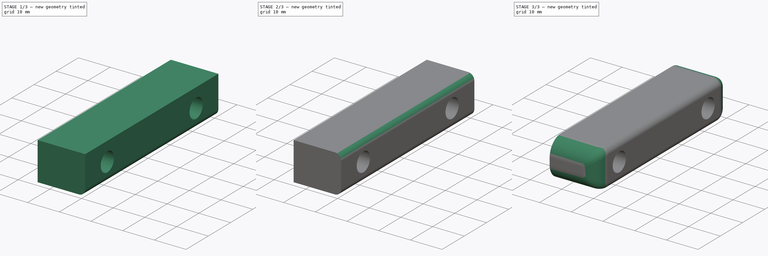
[diagram: build sequence overview — one tinted view per stage of 3, left to right]
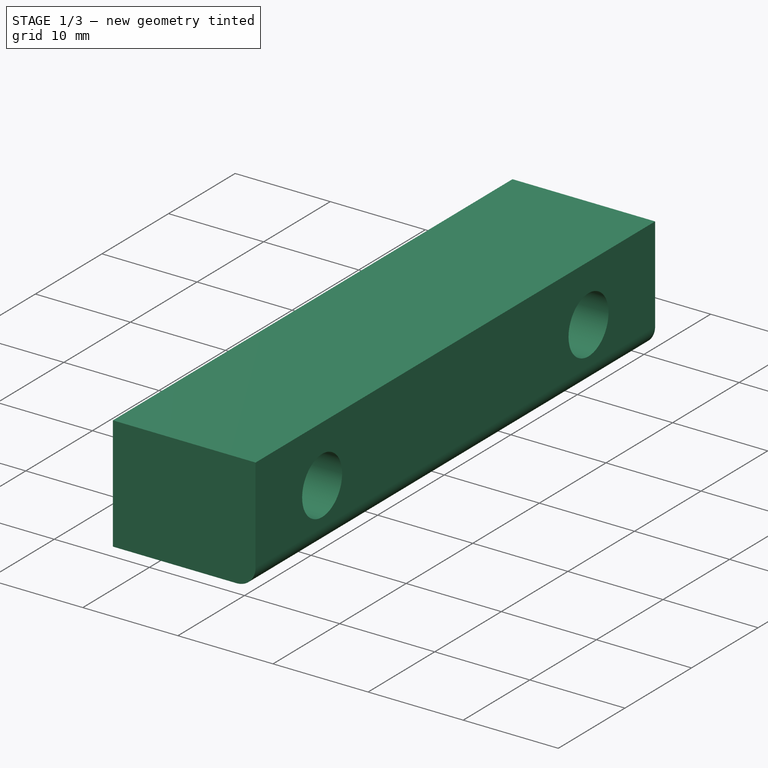
[diagram: stage 1 of 3 — iso view after this stage's code; geometry added in this stage tinted green]
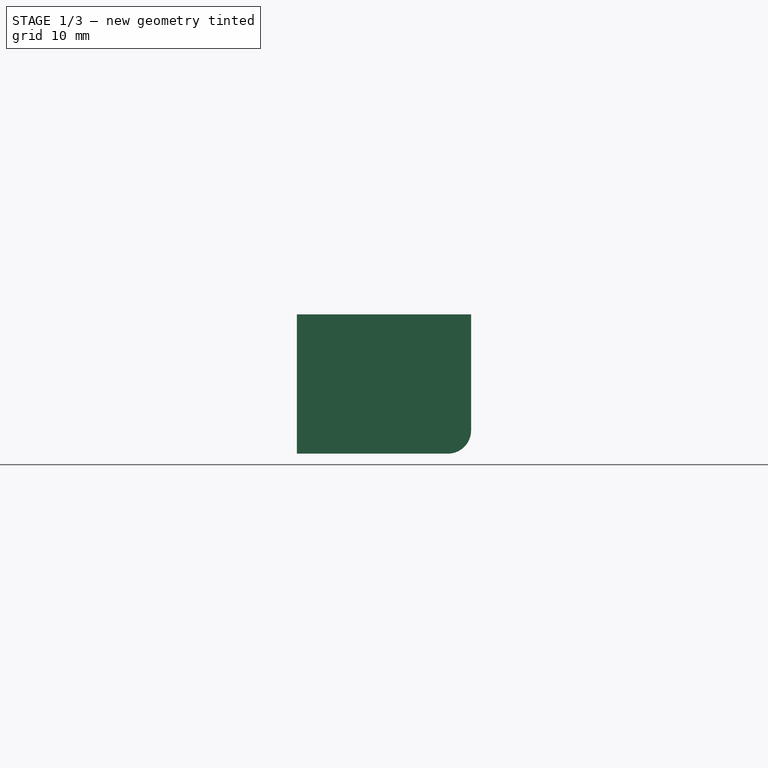
[diagram: stage 1 of 3 — front view after this stage's code; geometry added in this stage tinted green]
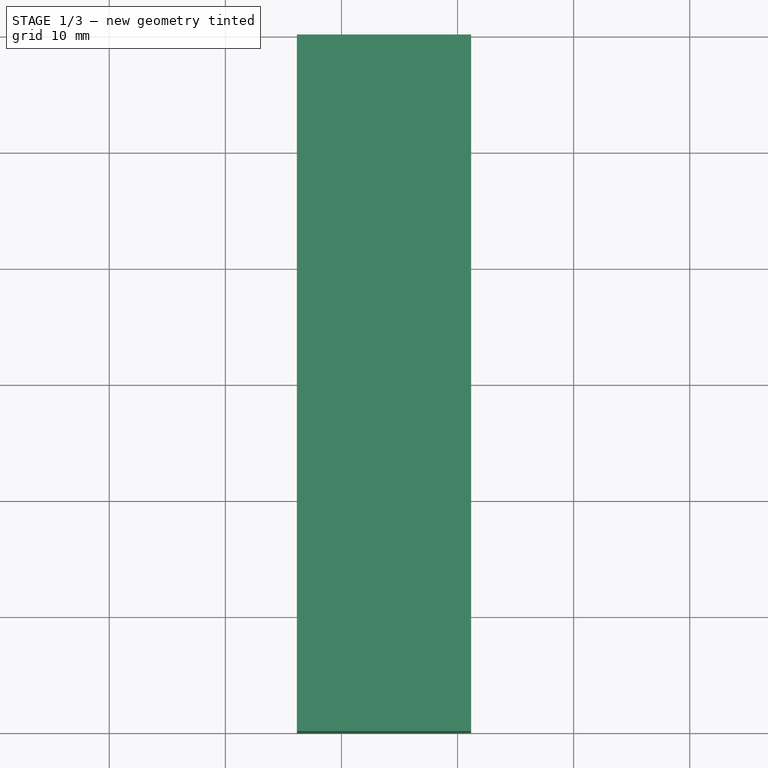
[diagram: stage 1 of 3 — top view after this stage's code; geometry added in this stage tinted green]
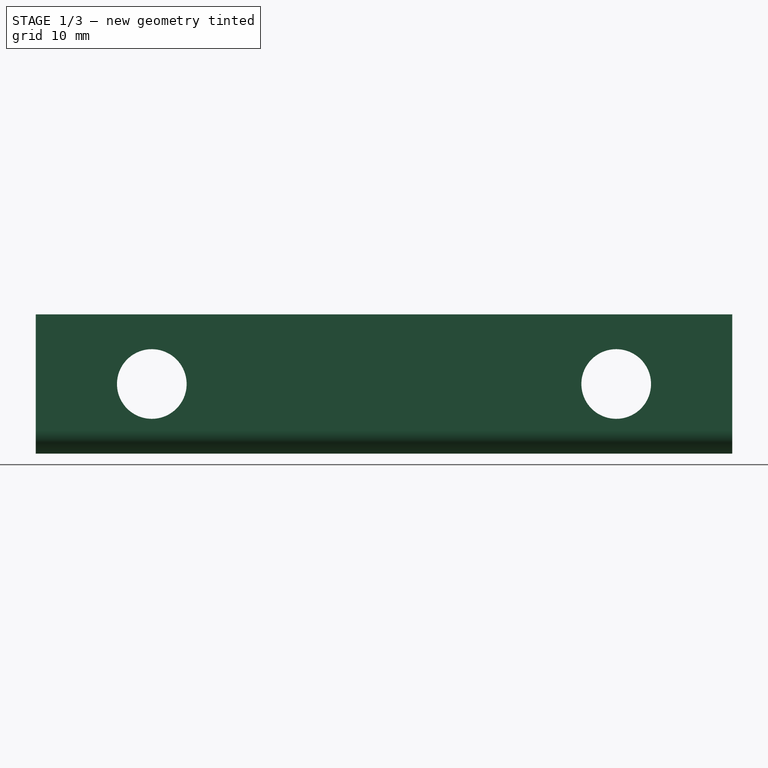
[diagram: stage 1 of 3 — right view after this stage's code; geometry added in this stage tinted green]
FCSTD DOCUMENT  (FreeCAD 0.16R6703 (Git))
Label: EndStops
License: All rights reserved
LicenseURL: http://en.wikipedia.org/wiki/All_rights_reserved
objects: PartDesign::Fillet×4, Sketcher::SketchObject×1, PartDesign::Pad×1
note: 7 computed .brp shape members not serialized (recipe doc carries the construction recipe); baked Part::Feature solids carry a one-line shape summary decoded from their .brp

FEATURE [Sketcher::SketchObject] Sketch001
  Placement = pos=(26.1649,0,0) rot=(0.707107,0,0.707107;3.14159rad)
  sketch-geometry (8):
    g0: LineSegment StartX=9.36781 StartY=60 StartZ=0 EndX=21.3678 EndY=60 EndZ=0
    g1: LineSegment StartX=21.3678 StartY=60 StartZ=0 EndX=21.3678 EndY=0 EndZ=0
    g2: LineSegment StartX=9.36781 StartY=0 StartZ=0 EndX=9.36781 EndY=60 EndZ=0
    g3: LineSegment [constr] StartX=15.3678 StartY=60 StartZ=0 EndX=15.3678 EndY=50 EndZ=0
    g4: LineSegment StartX=9.36781 StartY=0 StartZ=0 EndX=21.3678 EndY=0 EndZ=0
    g5: LineSegment [constr] StartX=15.3678 StartY=0 StartZ=0 EndX=15.3678 EndY=10 EndZ=0
    g6: Circle CenterX=15.3678 CenterY=10 CenterZ=0 NormalX=0 NormalY=0 NormalZ=1 Radius=3
    g7: Circle CenterX=15.3678 CenterY=50 CenterZ=0 NormalX=0 NormalY=0 NormalZ=1 Radius=3
  constraints (22):
    c: Coincident(g0,g1)
    c: Coincident(g2,g0)
    c: Horizontal(g0)
    c: Vertical(g1)
    c: Vertical(g2)
    c: DistanceX(g0,g0) = 12
    c: DistanceY(g1,g1) = 60
    c: PointOnObject(g3,g0)
    c: Vertical(g3)
    c: Coincident(g4,g2)
    c: Coincident(g4,g1)
    c: Horizontal(g4)
    c: PointOnObject(g5,g4)
    c: Vertical(g5)
    c: DistanceY(g3,g3) = 10
    c: Equal(g3,g5)
    c: Coincident(g6,g5)
    c: Coincident(g7,g3)
    c: Equal(g7,g6)
    c: Symmetric(g2,g1,g5)
    c: Symmetric(g0,g0,g3)
    c: Radius(g7) = 3
FEATURE [PartDesign::Pad] Pad
  Length = 15
  Length2 = 100
  Placement = pos=(26.1649,0,0) rot=(0.707107,0,0.707107;3.14159rad)
  Sketch = -> Sketch001
  Type = 0
FEATURE [PartDesign::Fillet] Fillet
  Base = -> Pad [Edge12]
  Placement = pos=(26.1649,0,0) rot=(0.707107,0,0.707107;3.14159rad)
  Radius = 2
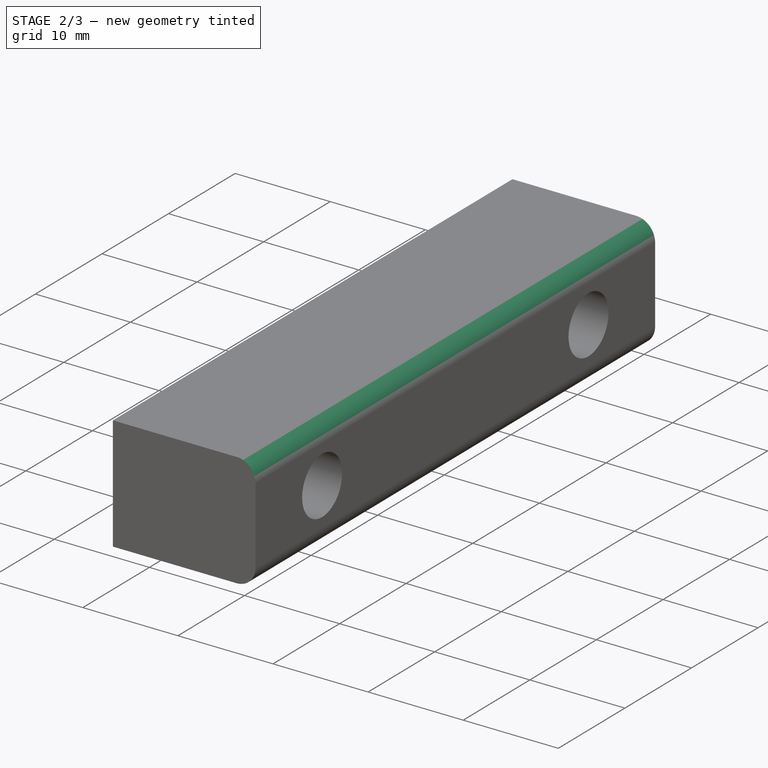
[diagram: stage 2 of 3 — iso view after this stage's code; geometry added in this stage tinted green]
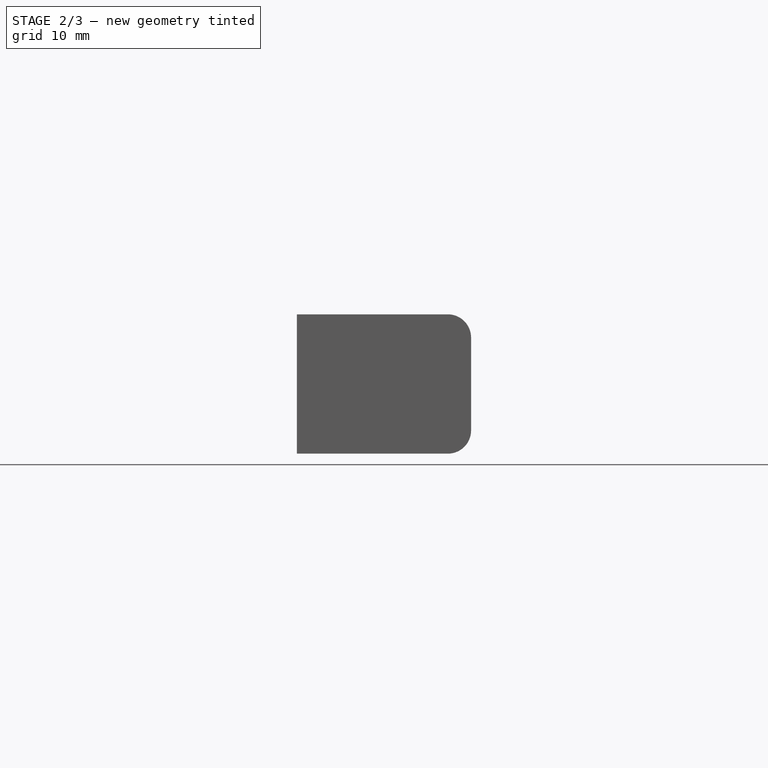
[diagram: stage 2 of 3 — front view after this stage's code; geometry added in this stage tinted green]
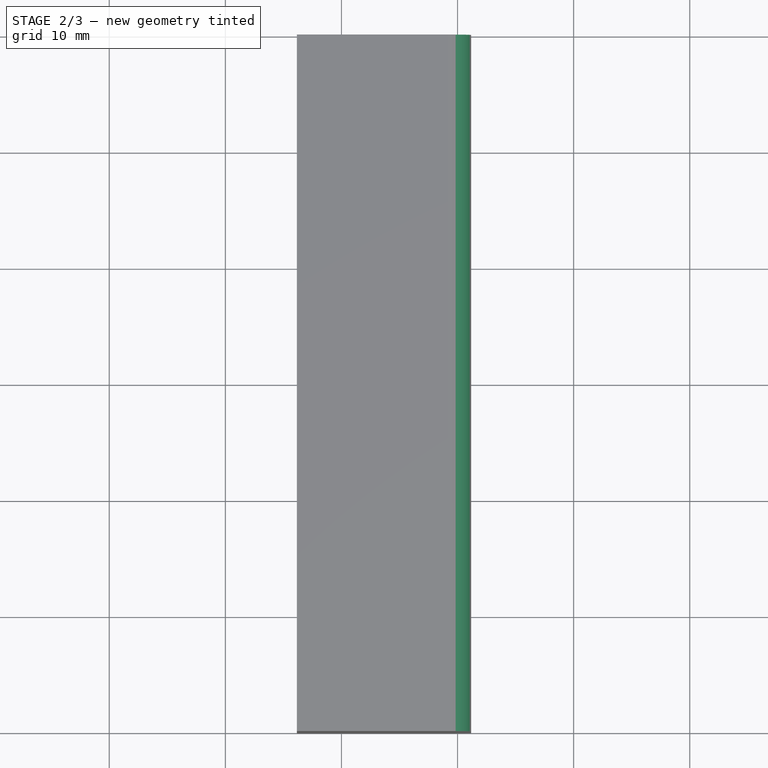
[diagram: stage 2 of 3 — top view after this stage's code; geometry added in this stage tinted green]
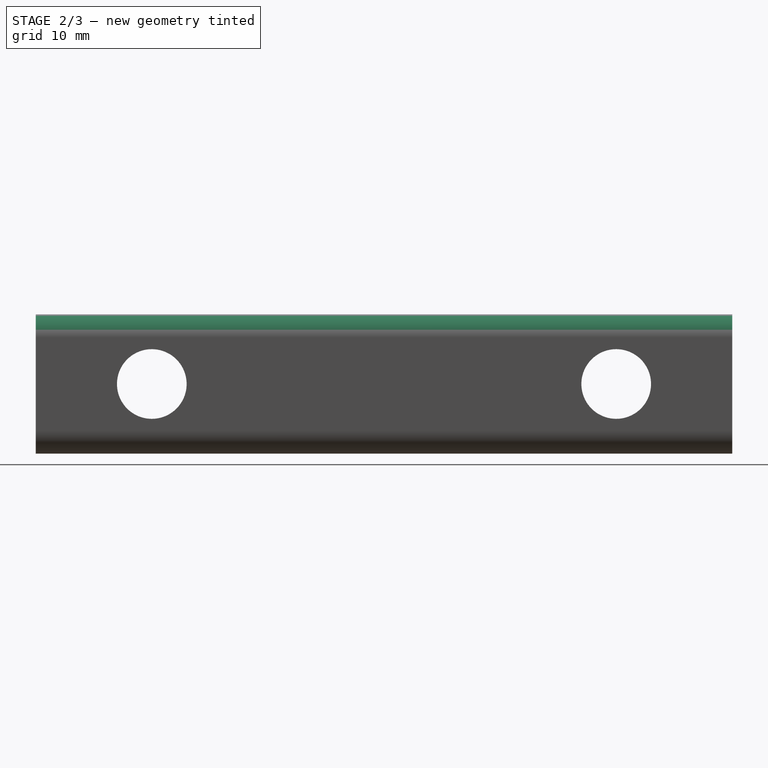
[diagram: stage 2 of 3 — right view after this stage's code; geometry added in this stage tinted green]
FEATURE [PartDesign::Fillet] Fillet001
  Base = -> Fillet [Edge15]
  Placement = pos=(26.1649,0,0) rot=(0.707107,0,0.707107;3.14159rad)
  Radius = 2
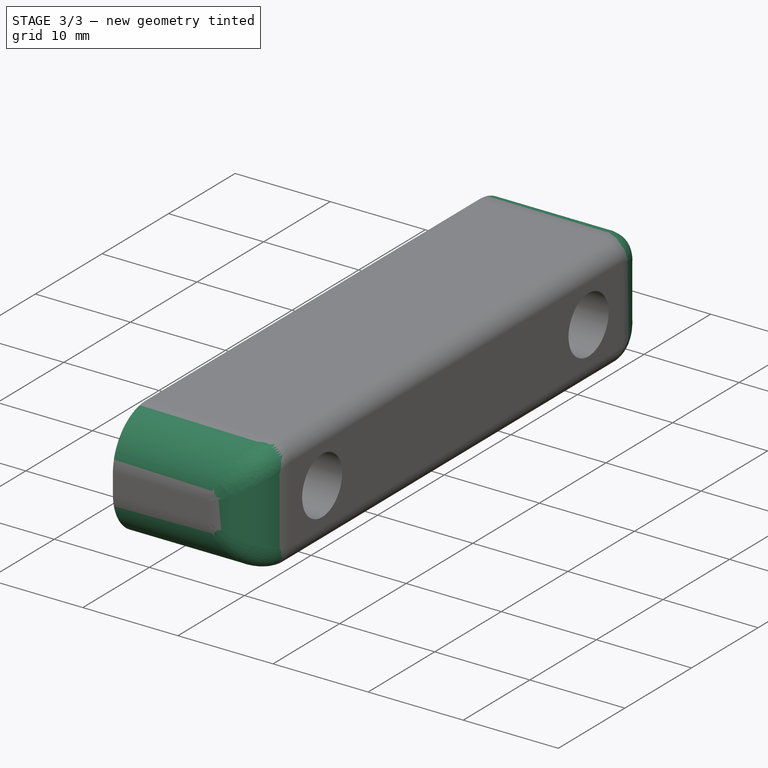
[diagram: stage 3 of 3 — iso view after this stage's code; geometry added in this stage tinted green]
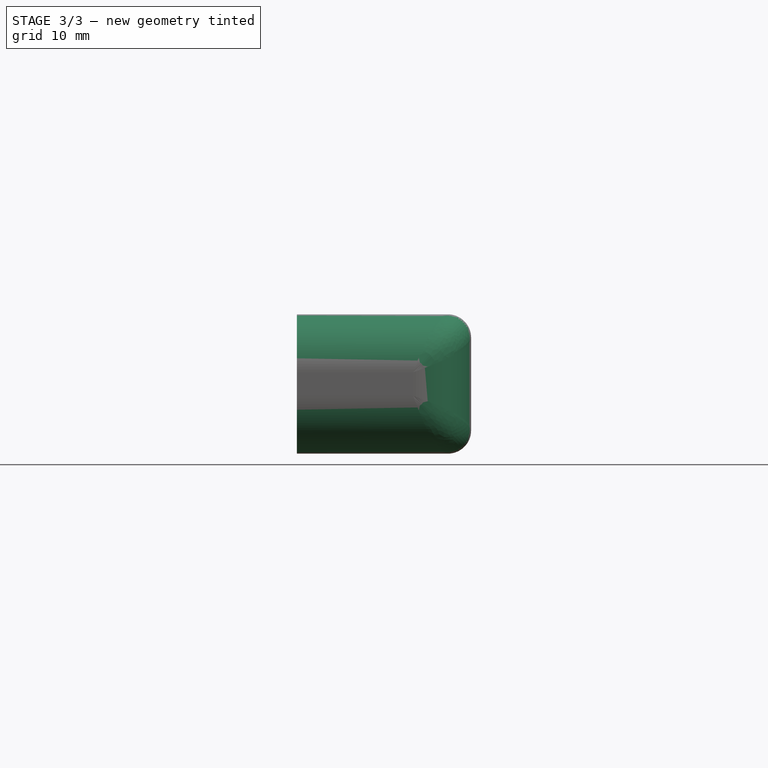
[diagram: stage 3 of 3 — front view after this stage's code; geometry added in this stage tinted green]
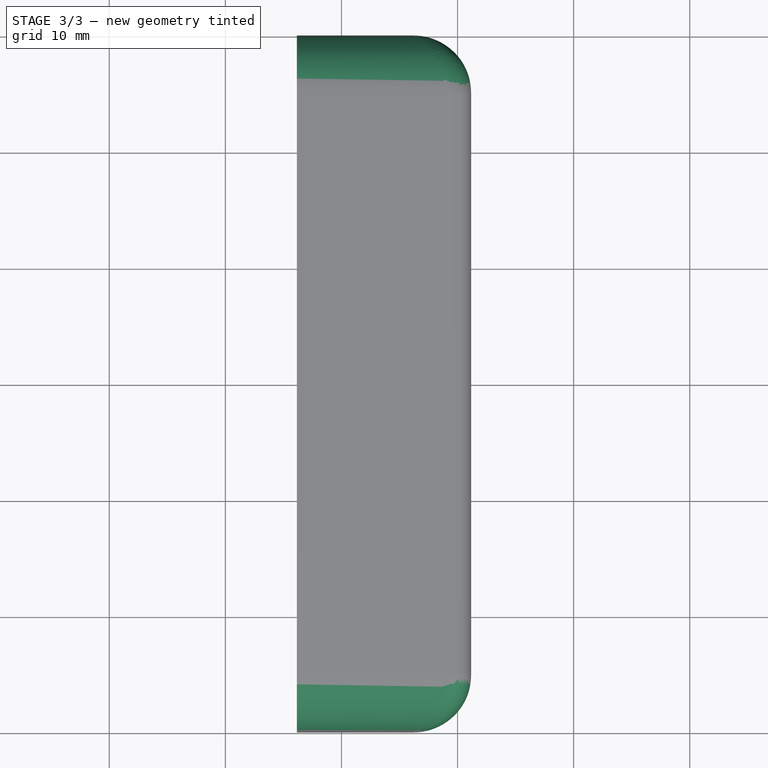
[diagram: stage 3 of 3 — top view after this stage's code; geometry added in this stage tinted green]
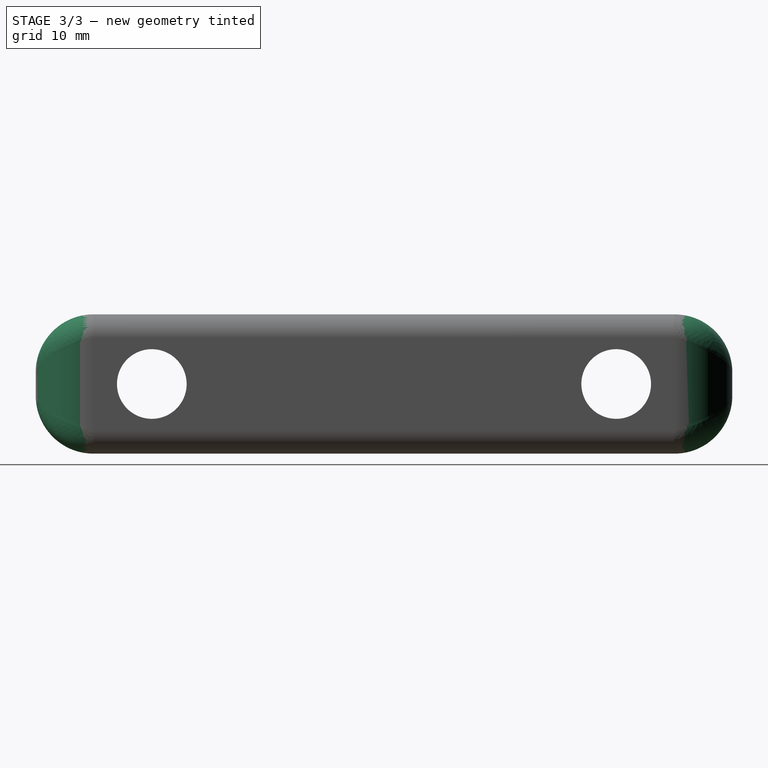
[diagram: stage 3 of 3 — right view after this stage's code; geometry added in this stage tinted green]
FEATURE [PartDesign::Fillet] Fillet002
  Base = -> Fillet001 [Edge1]
  Placement = pos=(26.1649,0,0) rot=(0.707107,0,0.707107;3.14159rad)
  Radius = 5
FEATURE [PartDesign::Fillet] Fillet003
  Base = -> Fillet002 [Edge23]
  Placement = pos=(26.1649,0,0) rot=(0.707107,0,0.707107;3.14159rad)
  Radius = 5
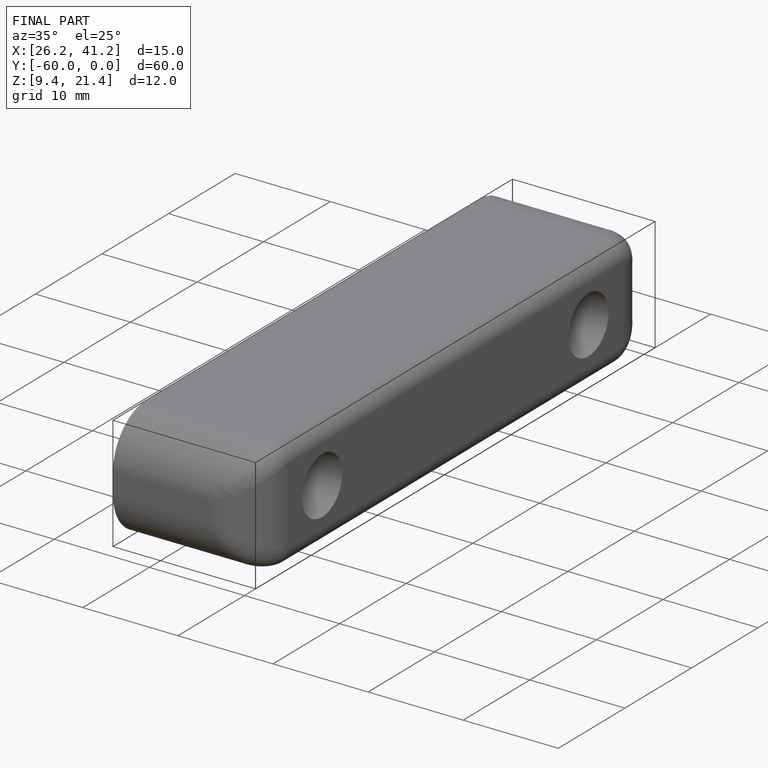
[diagram: finished part — iso view with bounding-box wireframe]
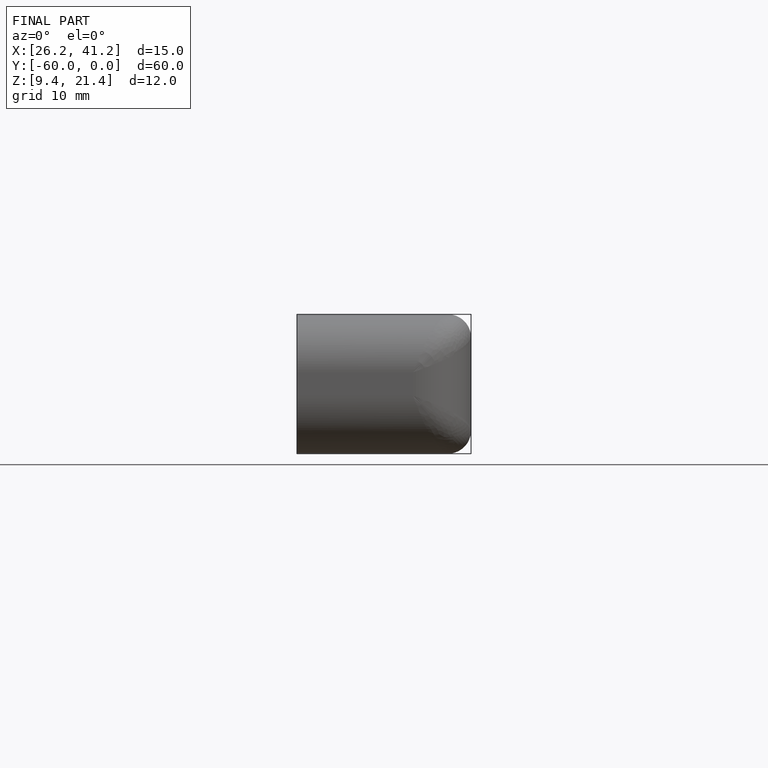
[diagram: finished part — front view with bounding-box wireframe]
